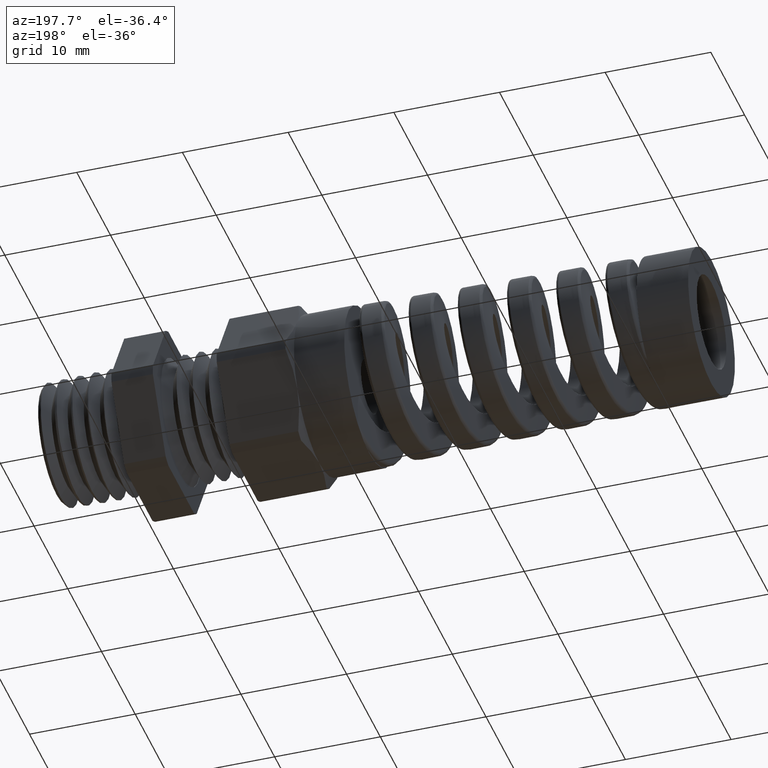
[diagram: clean part render]
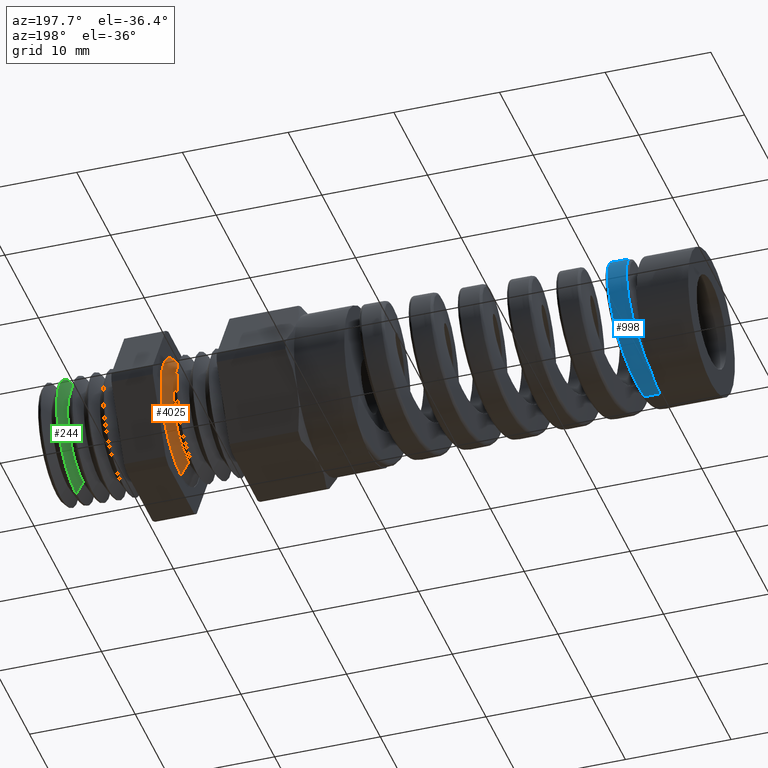
[diagram: same view with three faces highlighted in distinct colors, each labeled with its STEP entity id]
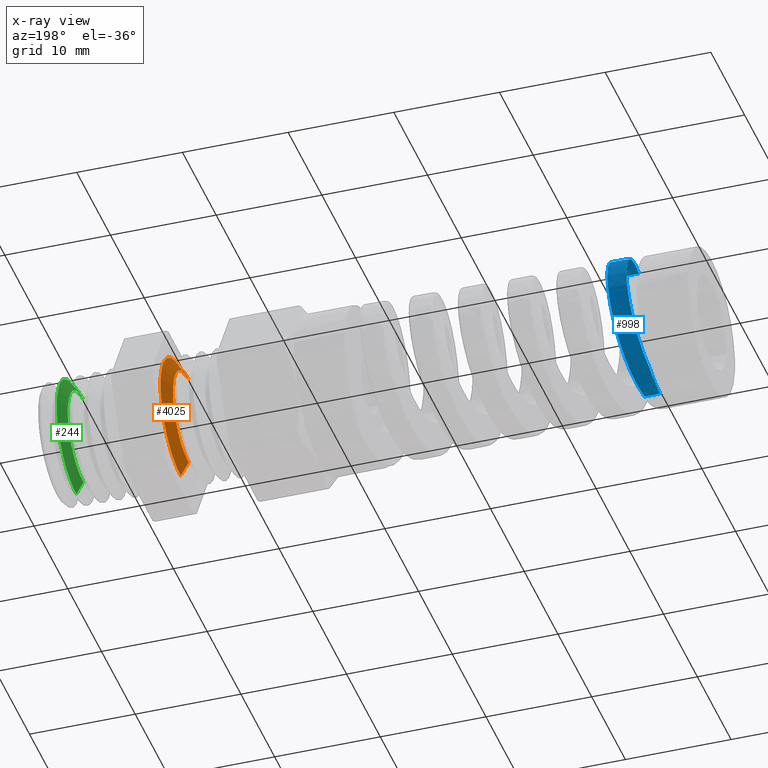
[diagram: x-ray of the same camera — body ghosted, the three highlighted faces saturated]
A machine part, auxiliary view with three faces highlighted in distinct colors.
The next image is the same camera in x-ray (body ghosted, the three faces saturated) — at least one of them is partly hidden behind the body in this view.
Their STEP definitions:

[orange] entity #4025 — the highlighted conical surface has half-angle 60 deg.
#1504 = VERTEX_POINT ( 'NONE', #9032 ) ;
#3970 = VERTEX_POINT ( 'NONE', #9172 ) ;
#3971 = ORIENTED_EDGE ( 'NONE', *, *, #4009, .F. ) ;
#3972 = ORIENTED_EDGE ( 'NONE', *, *, #3979, .F. ) ;
#3974 = VERTEX_POINT ( 'NONE', #9169 ) ;
#3975 = ORIENTED_EDGE ( 'NONE', *, *, #4036, .T. ) ;
#3976 = ORIENTED_EDGE ( 'NONE', *, *, #3978, .T. ) ;
#3978 = EDGE_CURVE ( 'NONE', #1504, #3974, #9164, .T. ) ;
#3979 = EDGE_CURVE ( 'NONE', #3970, #3974, #9160, .T. ) ;
#4009 = EDGE_CURVE ( 'NONE', #4033, #3970, #9189, .T. ) ;
#4025 = ADVANCED_FACE ( 'NONE', ( #9228 ), #9227, .T. ) ;
#4033 = VERTEX_POINT ( 'NONE', #9272 ) ;
#4036 = EDGE_CURVE ( 'NONE', #4033, #1504, #9271, .T. ) ;
#4054 = EDGE_LOOP ( 'NONE', ( #3975, #3976, #3972, #3971 ) ) ;
#9032 = CARTESIAN_POINT ( 'NONE',  ( -0.1820833473208369200, 2.559747554726804500E-017, 0.1830385000000000200 ) ) ;
#9156 = DIRECTION ( 'NONE',  ( 0.0000000000000000000, 0.0000000000000000000, -1.000000000000000000 ) ) ;
#9157 = DIRECTION ( 'NONE',  ( 1.000000000000000000, 0.0000000000000000000, 0.0000000000000000000 ) ) ;
#9158 = CARTESIAN_POINT ( 'NONE',  ( -0.1520833613083400200, 0.0000000000000000000, 0.0000000000000000000 ) ) ;
#9159 = AXIS2_PLACEMENT_3D ( 'NONE', #9158, #9157, #9156 ) ;
#9160 = CIRCLE ( 'NONE', #9159, 0.2350000000000000100 ) ;
#9161 = DIRECTION ( 'NONE',  ( 0.5000000000000020000, 1.060575238724905400E-016, 0.8660254037844374900 ) ) ;
#9162 = VECTOR ( 'NONE', #9161, 39.37007874015748100 ) ;
#9163 = CARTESIAN_POINT ( 'NONE',  ( -0.1820833473208369200, 2.241575131457328500E-017, 0.1830385000000000200 ) ) ;
#9164 = LINE ( 'NONE', #9163, #9162 ) ;
#9169 = CARTESIAN_POINT ( 'NONE',  ( -0.1520833613083400200, 2.877919977996280400E-017, 0.2350000000000000100 ) ) ;
#9172 = CARTESIAN_POINT ( 'NONE',  ( -0.1520833613083400200, 0.0000000000000000000, -0.2350000000000000100 ) ) ;
#9186 = DIRECTION ( 'NONE',  ( 0.5000000000000020000, 0.0000000000000000000, -0.8660254037844374900 ) ) ;
#9187 = VECTOR ( 'NONE', #9186, 39.37007874015748100 ) ;
#9188 = CARTESIAN_POINT ( 'NONE',  ( -0.1820833473208369200, 0.0000000000000000000, -0.1830385000000000200 ) ) ;
#9189 = LINE ( 'NONE', #9188, #9187 ) ;
#9223 = DIRECTION ( 'NONE',  ( 0.0000000000000000000, 0.0000000000000000000, -1.000000000000000000 ) ) ;
#9224 = DIRECTION ( 'NONE',  ( 1.000000000000000000, 0.0000000000000000000, 0.0000000000000000000 ) ) ;
#9225 = AXIS2_PLACEMENT_3D ( 'NONE', #9233, #9224, #9223 ) ;
#9227 = CONICAL_SURFACE ( 'NONE', #9225, 0.1830385000000000200, 1.047197551196595400 ) ;
#9228 = FACE_OUTER_BOUND ( 'NONE', #4054, .T. ) ;
#9233 = CARTESIAN_POINT ( 'NONE',  ( -0.1820833473208369200, 0.0000000000000000000, 0.0000000000000000000 ) ) ;
#9267 = DIRECTION ( 'NONE',  ( 0.0000000000000000000, 0.0000000000000000000, -1.000000000000000000 ) ) ;
#9268 = DIRECTION ( 'NONE',  ( 1.000000000000000000, 0.0000000000000000000, 0.0000000000000000000 ) ) ;
#9269 = CARTESIAN_POINT ( 'NONE',  ( -0.1820833473208369200, 0.0000000000000000000, 0.0000000000000000000 ) ) ;
#9270 = AXIS2_PLACEMENT_3D ( 'NONE', #9269, #9268, #9267 ) ;
#9271 = CIRCLE ( 'NONE', #9270, 0.1830385000000000200 ) ;
#9272 = CARTESIAN_POINT ( 'NONE',  ( -0.1820833473208369200, 0.0000000000000000000, -0.1830385000000000200 ) ) ;

[blue] entity #998 — the highlighted conical surface has half-angle 1 deg.
#914 = ORIENTED_EDGE ( 'NONE', *, *, #915, .T. ) ;
#915 = EDGE_CURVE ( 'NONE', #1034, #916, #5793, .T. ) ;
#916 = VERTEX_POINT ( 'NONE', #5792 ) ;
#917 = ORIENTED_EDGE ( 'NONE', *, *, #918, .T. ) ;
#918 = EDGE_CURVE ( 'NONE', #916, #919, #5794, .T. ) ;
#919 = VERTEX_POINT ( 'NONE', #5754 ) ;
#920 = ORIENTED_EDGE ( 'NONE', *, *, #921, .T. ) ;
#921 = EDGE_CURVE ( 'NONE', #919, #978, #5753, .T. ) ;
#978 = VERTEX_POINT ( 'NONE', #7755 ) ;
#979 = ORIENTED_EDGE ( 'NONE', *, *, #980, .F. ) ;
#980 = EDGE_CURVE ( 'NONE', #995, #978, #7750, .T. ) ;
#981 = ORIENTED_EDGE ( 'NONE', *, *, #994, .T. ) ;
#994 = EDGE_CURVE ( 'NONE', #995, #1034, #7800, .T. ) ;
#995 = VERTEX_POINT ( 'NONE', #7874 ) ;
#998 = ADVANCED_FACE ( 'NONE', ( #7869 ), #7868, .T. ) ;
#1034 = VERTEX_POINT ( 'NONE', #7974 ) ;
#4018 = EDGE_LOOP ( 'NONE', ( #914, #917, #920, #979, #981 ) ) ;
#5708 = CARTESIAN_POINT ( 'NONE',  ( -1.880397292627551000, -2.926507993117214500E-014, -0.2738506178370869700 ) ) ;
#5709 = CARTESIAN_POINT ( 'NONE',  ( -1.879441323907974600, 0.009035076042785906300, -0.2738673043331575900 ) ) ;
#5710 = CARTESIAN_POINT ( 'NONE',  ( -1.878480989115243400, 0.01811272895967842200, -0.2734321781817584100 ) ) ;
#5711 = CARTESIAN_POINT ( 'NONE',  ( -1.876578892180183800, 0.03599973885252597000, -0.2716899583970686600 ) ) ;
#5712 = CARTESIAN_POINT ( 'NONE',  ( -1.874685020807223200, 0.05371642535521986600, -0.2690778936581140800 ) ) ;
#5713 = CARTESIAN_POINT ( 'NONE',  ( -1.872788898941777800, 0.07109534605998224500, -0.2647510827274007200 ) ) ;
#5714 = CARTESIAN_POINT ( 'NONE',  ( -1.870883145222171700, 0.08830206603199773600, -0.2595547310780067500 ) ) ;
#5715 = CARTESIAN_POINT ( 'NONE',  ( -1.869920182362908100, 0.09686496764274808700, -0.2565017058585377700 ) ) ;
#5716 = CARTESIAN_POINT ( 'NONE',  ( -1.867048334361229600, 0.1219057775098503100, -0.2461446206407496800 ) ) ;
#5717 = CARTESIAN_POINT ( 'NONE',  ( -1.865164656478393700, 0.1376937730758332200, -0.2376998350691865200 ) ) ;
#5718 = CARTESIAN_POINT ( 'NONE',  ( -1.861377854837761100, 0.1674962788471581200, -0.2178119033908961500 ) ) ;
#5719 = CARTESIAN_POINT ( 'NONE',  ( -1.859454776228485400, 0.1816338695845584300, -0.2062183779142247300 ) ) ;
#5720 = CARTESIAN_POINT ( 'NONE',  ( -1.855654898397025800, 0.2070198263391728200, -0.1808205016202841800 ) ) ;
#5721 = CARTESIAN_POINT ( 'NONE',  ( -1.853768304886207900, 0.2183707508133485300, -0.1669937319953454800 ) ) ;
#5722 = CARTESIAN_POINT ( 'NONE',  ( -1.850910901360068000, 0.2333686985698143200, -0.1445555436725471700 ) ) ;
#5723 = CARTESIAN_POINT ( 'NONE',  ( -1.849949166933673600, 0.2380491144327894800, -0.1367462139952927700 ) ) ;
#5724 = CARTESIAN_POINT ( 'NONE',  ( -1.848042755154311900, 0.2465463270154011100, -0.1208307851538513900 ) ) ;
#5725 = CARTESIAN_POINT ( 'NONE',  ( -1.847096325490835000, 0.2503761655890401900, -0.1127152095909684700 ) ) ;
#5726 = CARTESIAN_POINT ( 'NONE',  ( -1.844261972336039800, 0.2606387988426829800, -0.08790768091947016900 ) ) ;
#5727 = CARTESIAN_POINT ( 'NONE',  ( -1.842379046258577400, 0.2658565059941317400, -0.07075934350329407500 ) ) ;
#5728 = CARTESIAN_POINT ( 'NONE',  ( -1.838547683273650500, 0.2729174784297152000, -0.03520423437966485600 ) ) ;
#5729 = CARTESIAN_POINT ( 'NONE',  ( -1.836653782690841300, 0.2746514738813918800, -0.01730868315634323200 ) ) ;
#5730 = CARTESIAN_POINT ( 'NONE',  ( -1.833815438027507100, 0.2746441262994856500, 0.009527688159193191100 ) ) ;
#5731 = CARTESIAN_POINT ( 'NONE',  ( -1.832869304493377700, 0.2742056764216520000, 0.01848173670043912900 ) ) ;
#5732 = CARTESIAN_POINT ( 'NONE',  ( -1.830967985960782600, 0.2724392305368578700, 0.03640640486243746500 ) ) ;
#5733 = CARTESIAN_POINT ( 'NONE',  ( -1.830008209651349000, 0.2710998634802557200, 0.04541717069056616000 ) ) ;
#5734 = CARTESIAN_POINT ( 'NONE',  ( -1.827157323377826000, 0.2658106516575972100, 0.07192688823635351400 ) ) ;
#5735 = CARTESIAN_POINT ( 'NONE',  ( -1.825279707286268500, 0.2606038741657478200, 0.08904664076687419900 ) ) ;
#5736 = CARTESIAN_POINT ( 'NONE',  ( -1.821492888475324300, 0.2468808426593172800, 0.1221878354854037300 ) ) ;
#5737 = CARTESIAN_POINT ( 'NONE',  ( -1.819568129171205600, 0.2382564752607831100, 0.1383190546851624200 ) ) ;
#5738 = CARTESIAN_POINT ( 'NONE',  ( -1.815779270211369300, 0.2183269064216944200, 0.1681310136169575400 ) ) ;
#5739 = CARTESIAN_POINT ( 'NONE',  ( -1.813901671323751200, 0.2069837939811370600, 0.1819725066028747300 ) ) ;
#5740 = CARTESIAN_POINT ( 'NONE',  ( -1.811052529577049700, 0.1878717124951306000, 0.2011070847207955000 ) ) ;
#5741 = CARTESIAN_POINT ( 'NONE',  ( -1.810094307678722600, 0.1811246755058705500, 0.2072261204131267400 ) ) ;
#5742 = CARTESIAN_POINT ( 'NONE',  ( -1.808197431520660100, 0.1672093267487727000, 0.2186505680429547100 ) ) ;
#5743 = CARTESIAN_POINT ( 'NONE',  ( -1.807253978716647300, 0.1600106884643507100, 0.2239902815977409000 ) ) ;
#5744 = CARTESIAN_POINT ( 'NONE',  ( -1.804424291318170700, 0.1377068756138444500, 0.2389123389785301500 ) ) ;
#5745 = CARTESIAN_POINT ( 'NONE',  ( -1.802532695116751700, 0.1218496140469439700, 0.2474293084878654000 ) ) ;
#5746 = CARTESIAN_POINT ( 'NONE',  ( -1.798708452852886700, 0.08838982860337471500, 0.2613284822181394800 ) ) ;
#5747 = CARTESIAN_POINT ( 'NONE',  ( -1.796829817295950000, 0.07124090370296010100, 0.2665339025294498100 ) ) ;
#5748 = CARTESIAN_POINT ( 'NONE',  ( -1.794004279107412900, 0.04491716905872104200, 0.2718177865085847900 ) ) ;
#5749 = CARTESIAN_POINT ( 'NONE',  ( -1.793061085595876400, 0.03604182048026229700, 0.2731553437473535600 ) ) ;
#5750 = CARTESIAN_POINT ( 'NONE',  ( -1.791161897892601800, 0.01808565047922763800, 0.2749618566264595600 ) ) ;
#5751 = CARTESIAN_POINT ( 'NONE',  ( -1.790204866449210700, 0.008994899455455712000, 0.2754249324920806700 ) ) ;
#5752 = CARTESIAN_POINT ( 'NONE',  ( -1.789257497916605200, -5.350223209652775300E-013, 0.2754414688713108200 ) ) ;
#5753 = B_SPLINE_CURVE_WITH_KNOTS ( 'NONE', 3,
 ( #5752, #5751, #5750, #5749, #5748, #5747, #5746, #5745, #5744, #5743, #5742, #5741, #5740, #5739, #5738, #5737, #5736, #5735, #5734, #5733, #5732, #5731, #5730, #5729, #5728, #5727, #5726, #5725, #5724, #5723, #5722, #5721, #5720, #5719, #5718, #5717, #5716, #5715, #5714, #5713, #5712, #5711, #5710, #5709, #5708 ),
 .UNSPECIFIED., .F., .F.,
 ( 4, 2, 2, 2, 2, 2, 2, 2, 2, 2, 2, 2, 2, 2, 2, 2, 2, 2, 2, 2, 1, 2, 4 ),
 ( 0.2322916268360444600, 0.2329790355535136200, 0.2336664442709827900, 0.2350412617059211600, 0.2364160791408594900, 0.2371034878583286600, 0.2377908965757978300, 0.2391657140107361600, 0.2405405314456745000, 0.2419153488806128600, 0.2426027575980820300, 0.2432901663155512000, 0.2446649837504895300, 0.2460398011854278700, 0.2467272099028970400, 0.2474146186203662100, 0.2487894360553045400, 0.2501642534902429000, 0.2515390709251812400, 0.2522264796426503800, 0.2529138883601195800, 0.2536012970775887200, 0.2542887057950579100 ),
 .UNSPECIFIED. ) ;
#5754 = CARTESIAN_POINT ( 'NONE',  ( -1.789257497916605200, -5.350223209652775300E-013, 0.2754414688713108200 ) ) ;
#5755 = DIRECTION ( 'NONE',  ( 0.9998476951563912700, 2.137303368083806700E-018, 0.01745240643728363700 ) ) ;
#5756 = VECTOR ( 'NONE', #5755, 39.37007874015748100 ) ;
#5757 = CARTESIAN_POINT ( 'NONE',  ( -0.6687499999999999600, 3.612708057484692000E-017, 0.2949999999999999800 ) ) ;
#5758 = CARTESIAN_POINT ( 'NONE',  ( -1.859537822061088100, 7.911195213359834800E-013, 0.2742147212501926900 ) ) ;
#5759 = CARTESIAN_POINT ( 'NONE',  ( -1.861175974527940600, 0.01552082260280143600, 0.2741861271924767600 ) ) ;
#5760 = CARTESIAN_POINT ( 'NONE',  ( -1.862830824008592200, 0.03122685274430085300, 0.2728125112849517600 ) ) ;
#5761 = CARTESIAN_POINT ( 'NONE',  ( -1.866089015243927300, 0.06172639058723358000, 0.2675078594681787900 ) ) ;
#5762 = CARTESIAN_POINT ( 'NONE',  ( -1.867707609369113000, 0.07666657417242601900, 0.2635880724837855700 ) ) ;
#5763 = CARTESIAN_POINT ( 'NONE',  ( -1.870976404588511800, 0.1059170210809877200, 0.2531931041089878200 ) ) ;
#5764 = CARTESIAN_POINT ( 'NONE',  ( -1.872632946254698200, 0.1202679212425369900, 0.2466649614789447900 ) ) ;
#5765 = CARTESIAN_POINT ( 'NONE',  ( -1.875904344920384500, 0.1472553414256756200, 0.2315006548783573600 ) ) ;
#5766 = CARTESIAN_POINT ( 'NONE',  ( -1.877534384101424500, 0.1600340694797262300, 0.2228262120752767800 ) ) ;
#5767 = CARTESIAN_POINT ( 'NONE',  ( -1.880823423924346400, 0.1841457645961254400, 0.2032764506096091700 ) ) ;
#5768 = CARTESIAN_POINT ( 'NONE',  ( -1.882486854334296300, 0.1954987486353373100, 0.1923382218657586600 ) ) ;
#5769 = CARTESIAN_POINT ( 'NONE',  ( -1.885754506707217000, 0.2158859269032373000, 0.1690437428771988900 ) ) ;
#5770 = CARTESIAN_POINT ( 'NONE',  ( -1.887376316624854100, 0.2250413981952797700, 0.1566038538322323000 ) ) ;
#5771 = CARTESIAN_POINT ( 'NONE',  ( -1.890647547169623100, 0.2412542061332254600, 0.1301289731088625400 ) ) ;
#5772 = CARTESIAN_POINT ( 'NONE',  ( -1.892302985178219800, 0.2483083492126352500, 0.1160297350054521800 ) ) ;
#5773 = CARTESIAN_POINT ( 'NONE',  ( -1.895571032144468800, 0.2597553353178798100, 0.08726904019897960300 ) ) ;
#5774 = CARTESIAN_POINT ( 'NONE',  ( -1.897198950878900200, 0.2642349815260102700, 0.07248751448185689100 ) ) ;
#5775 = CARTESIAN_POINT ( 'NONE',  ( -1.900489152843511300, 0.2706826317505985300, 0.04211959414851259400 ) ) ;
#5776 = CARTESIAN_POINT ( 'NONE',  ( -1.902157128669428300, 0.2726257212009160500, 0.02647646281856399700 ) ) ;
#5777 = CARTESIAN_POINT ( 'NONE',  ( -1.905439451678036200, 0.2738149480534818300, -0.004452913156426556800 ) ) ;
#5778 = CARTESIAN_POINT ( 'NONE',  ( -1.907066482417729500, 0.2731027601729796900, -0.01988233844169965900 ) ) ;
#5779 = CARTESIAN_POINT ( 'NONE',  ( -1.910345299395482800, 0.2690395193802499500, -0.05066431239590820500 ) ) ;
#5780 = CARTESIAN_POINT ( 'NONE',  ( -1.912002045236658200, 0.2656466173702795000, -0.06605829844453491000 ) ) ;
#5781 = CARTESIAN_POINT ( 'NONE',  ( -1.915269258079508500, 0.2564365743263421500, -0.09560825569074923900 ) ) ;
#5782 = CARTESIAN_POINT ( 'NONE',  ( -1.916895272459208300, 0.2506105983874846200, -0.1099136750738253500 ) ) ;
#5783 = CARTESIAN_POINT ( 'NONE',  ( -1.920183099516604900, 0.2364943219689824300, -0.1375709559826468500 ) ) ;
#5784 = CARTESIAN_POINT ( 'NONE',  ( -1.921849777581938500, 0.2281530634236738900, -0.1509437390107649700 ) ) ;
#5785 = CARTESIAN_POINT ( 'NONE',  ( -1.925137740178192600, 0.2095985770310545800, -0.1757126122337185100 ) ) ;
#5786 = CARTESIAN_POINT ( 'NONE',  ( -1.926774649065755400, 0.1993263578896765100, -0.1872473119326540900 ) ) ;
#5787 = CARTESIAN_POINT ( 'NONE',  ( -1.930065398501583200, 0.1767729000465108100, -0.2085965742502123900 ) ) ;
#5788 = CARTESIAN_POINT ( 'NONE',  ( -1.931725426184241400, 0.1644451075770908000, -0.2184103308347062900 ) ) ;
#5789 = CARTESIAN_POINT ( 'NONE',  ( -1.935006945431941000, 0.1385885753927313100, -0.2355996749968506100 ) ) ;
#5790 = CARTESIAN_POINT ( 'NONE',  ( -1.936642463691468100, 0.1249670026700856900, -0.2430762708889738500 ) ) ;
#5791 = CARTESIAN_POINT ( 'NONE',  ( -1.938299999999999900, 0.1106353233695105500, -0.2494021820969405100 ) ) ;
#5792 = CARTESIAN_POINT ( 'NONE',  ( -1.859537822061088100, 7.911195213359834800E-013, 0.2742147212501926900 ) ) ;
#5793 = B_SPLINE_CURVE_WITH_KNOTS ( 'NONE', 3,
 ( #5791, #5790, #5789, #5788, #5787, #5786, #5785, #5784, #5783, #5782, #5781, #5780, #5779, #5778, #5777, #5776, #5775, #5774, #5773, #5772, #5771, #5770, #5769, #5768, #5767, #5766, #5765, #5764, #5763, #5762, #5761, #5760, #5759, #5758 ),
 .UNSPECIFIED., .F., .F.,
 ( 4, 2, 2, 2, 2, 2, 2, 2, 2, 2, 2, 2, 2, 2, 2, 2, 4 ),
 ( 0.0000000000000000000, 0.001188946467293655600, 0.002377892934587312000, 0.003566839401880968600, 0.004755785869174624900, 0.005944732336468280600, 0.007133678803761938200, 0.008322625271055594800, 0.009511571738349251400, 0.01070051820564290800, 0.01188946467293656100, 0.01307841114023021800, 0.01426735760752387500, 0.01545630407481752900, 0.01664525054211118300, 0.01783419700940484100, 0.01902314347669849600 ),
 .UNSPECIFIED. ) ;
#5794 = LINE ( 'NONE', #5757, #5756 ) ;
#7747 = DIRECTION ( 'NONE',  ( 0.9998476951563912700, 0.0000000000000000000, -0.01745240643728363700 ) ) ;
#7748 = VECTOR ( 'NONE', #7747, 39.37007874015748100 ) ;
#7749 = CARTESIAN_POINT ( 'NONE',  ( -0.6687499999999999600, 0.0000000000000000000, -0.2949999999999999800 ) ) ;
#7750 = LINE ( 'NONE', #7749, #7748 ) ;
#7755 = CARTESIAN_POINT ( 'NONE',  ( -1.880397292627551000, -2.926507993117214500E-014, -0.2738506178370869700 ) ) ;
#7760 = AXIS2_PLACEMENT_3D ( 'NONE', #7877, #7876, #7875 ) ;
#7800 = CIRCLE ( 'NONE', #7760, 0.2728399223203811800 ) ;
#7863 = DIRECTION ( 'NONE',  ( 0.0000000000000000000, 0.0000000000000000000, -1.000000000000000000 ) ) ;
#7864 = DIRECTION ( 'NONE',  ( 1.000000000000000000, 0.0000000000000000000, 0.0000000000000000000 ) ) ;
#7865 = CARTESIAN_POINT ( 'NONE',  ( -0.6687499999999999600, 0.0000000000000000000, 0.0000000000000000000 ) ) ;
#7866 = AXIS2_PLACEMENT_3D ( 'NONE', #7865, #7864, #7863 ) ;
#7868 = CONICAL_SURFACE ( 'NONE', #7866, 0.2949999999999999800, 0.01745329251994342000 ) ;
#7869 = FACE_OUTER_BOUND ( 'NONE', #4018, .T. ) ;
#7874 = CARTESIAN_POINT ( 'NONE',  ( -1.938299999999999900, 0.0000000000000000000, -0.2728399223203811800 ) ) ;
#7875 = DIRECTION ( 'NONE',  ( 0.0000000000000000000, 0.0000000000000000000, -1.000000000000000000 ) ) ;
#7876 = DIRECTION ( 'NONE',  ( 1.000000000000000000, 0.0000000000000000000, 0.0000000000000000000 ) ) ;
#7877 = CARTESIAN_POINT ( 'NONE',  ( -1.938299999999999900, 0.0000000000000000000, 0.0000000000000000000 ) ) ;
#7974 = CARTESIAN_POINT ( 'NONE',  ( -1.938299999999999900, 0.1106353233695105500, -0.2494021820969405100 ) ) ;

[green] entity #244 — the highlighted conical surface has half-angle 60 deg.
#244 = ADVANCED_FACE ( 'NONE', ( #1546 ), #1545, .T. ) ;
#245 = EDGE_LOOP ( 'NONE', ( #246, #254, #257, #260 ) ) ;
#246 = ORIENTED_EDGE ( 'NONE', *, *, #251, .F. ) ;
#251 = EDGE_CURVE ( 'NONE', #252, #253, #1616, .T. ) ;
#252 = VERTEX_POINT ( 'NONE', #1610 ) ;
#253 = VERTEX_POINT ( 'NONE', #1608 ) ;
#254 = ORIENTED_EDGE ( 'NONE', *, *, #255, .T. ) ;
#255 = EDGE_CURVE ( 'NONE', #252, #256, #1604, .T. ) ;
#256 = VERTEX_POINT ( 'NONE', #1599 ) ;
#257 = ORIENTED_EDGE ( 'NONE', *, *, #258, .T. ) ;
#258 = EDGE_CURVE ( 'NONE', #256, #259, #1596, .T. ) ;
#259 = VERTEX_POINT ( 'NONE', #1590 ) ;
#260 = ORIENTED_EDGE ( 'NONE', *, *, #261, .F. ) ;
#261 = EDGE_CURVE ( 'NONE', #253, #259, #1588, .T. ) ;
#1540 = DIRECTION ( 'NONE',  ( 0.0000000000000000000, 0.0000000000000000000, -1.000000000000000000 ) ) ;
#1541 = DIRECTION ( 'NONE',  ( 1.000000000000000000, 0.0000000000000000000, 0.0000000000000000000 ) ) ;
#1542 = CARTESIAN_POINT ( 'NONE',  ( 0.2099999860124963400, 0.0000000000000000000, 0.0000000000000000000 ) ) ;
#1543 = AXIS2_PLACEMENT_3D ( 'NONE', #1542, #1541, #1540 ) ;
#1545 = CONICAL_SURFACE ( 'NONE', #1543, 0.1830385000000000200, 1.047197551196597400 ) ;
#1546 = FACE_OUTER_BOUND ( 'NONE', #245, .T. ) ;
#1584 = DIRECTION ( 'NONE',  ( 0.5000000000000003300, 0.0000000000000000000, -0.8660254037844383700 ) ) ;
#1586 = VECTOR ( 'NONE', #1584, 39.37007874015748100 ) ;
#1587 = CARTESIAN_POINT ( 'NONE',  ( 0.2099999860124963400, 0.0000000000000000000, -0.1830385000000000200 ) ) ;
#1588 = LINE ( 'NONE', #1587, #1586 ) ;
#1590 = CARTESIAN_POINT ( 'NONE',  ( 0.2364255839236050200, 2.802101827717790500E-017, -0.2288089782024272900 ) ) ;
#1591 = DIRECTION ( 'NONE',  ( 0.0000000000000000000, 0.0000000000000000000, -1.000000000000000000 ) ) ;
#1592 = DIRECTION ( 'NONE',  ( -1.000000000000000000, 0.0000000000000000000, 0.0000000000000000000 ) ) ;
#1594 = CARTESIAN_POINT ( 'NONE',  ( 0.2364255839236050200, 0.0000000000000000000, 0.0000000000000000000 ) ) ;
#1595 = AXIS2_PLACEMENT_3D ( 'NONE', #1594, #1592, #1591 ) ;
#1596 = CIRCLE ( 'NONE', #1595, 0.2288089782024272700 ) ;
#1599 = CARTESIAN_POINT ( 'NONE',  ( 0.2364255839236050200, 0.0000000000000000000, 0.2288089782024272900 ) ) ;
#1600 = DIRECTION ( 'NONE',  ( 0.5000000000000003300, 1.060575238724906700E-016, 0.8660254037844383700 ) ) ;
#1601 = VECTOR ( 'NONE', #1600, 39.37007874015748100 ) ;
#1603 = CARTESIAN_POINT ( 'NONE',  ( 0.2099999860124963400, 2.241575131457328500E-017, 0.1830385000000000200 ) ) ;
#1604 = LINE ( 'NONE', #1603, #1601 ) ;
#1608 = CARTESIAN_POINT ( 'NONE',  ( 0.2099999860124963400, 2.530442858648396000E-017, -0.1830385000000000200 ) ) ;
#1610 = CARTESIAN_POINT ( 'NONE',  ( 0.2099999860124963400, 0.0000000000000000000, 0.1830385000000000200 ) ) ;
#1612 = DIRECTION ( 'NONE',  ( 0.0000000000000000000, 0.0000000000000000000, 1.000000000000000000 ) ) ;
#1613 = DIRECTION ( 'NONE',  ( -1.000000000000000000, 0.0000000000000000000, 0.0000000000000000000 ) ) ;
#1614 = CARTESIAN_POINT ( 'NONE',  ( 0.2099999860124963400, 0.0000000000000000000, 0.0000000000000000000 ) ) ;
#1615 = AXIS2_PLACEMENT_3D ( 'NONE', #1614, #1613, #1612 ) ;
#1616 = CIRCLE ( 'NONE', #1615, 0.1830385000000000200 ) ;